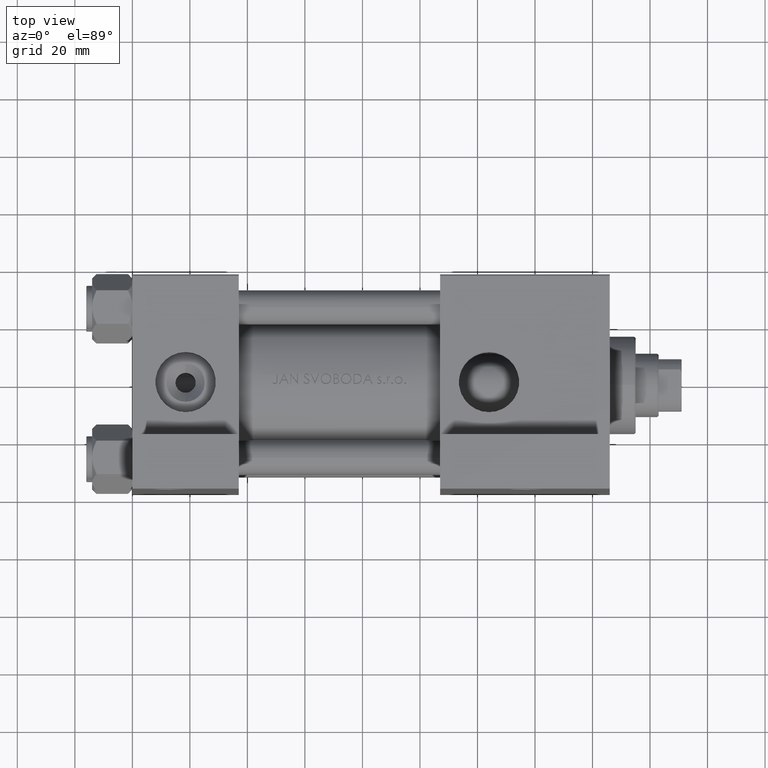
[diagram: clean part render]
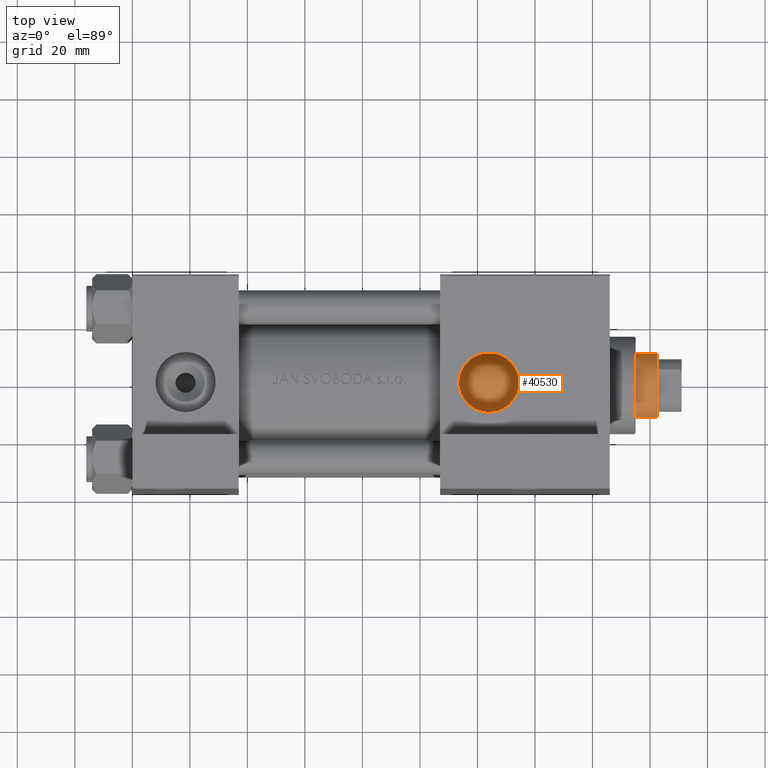
[diagram: same view with one face highlighted and labeled with its STEP entity id]
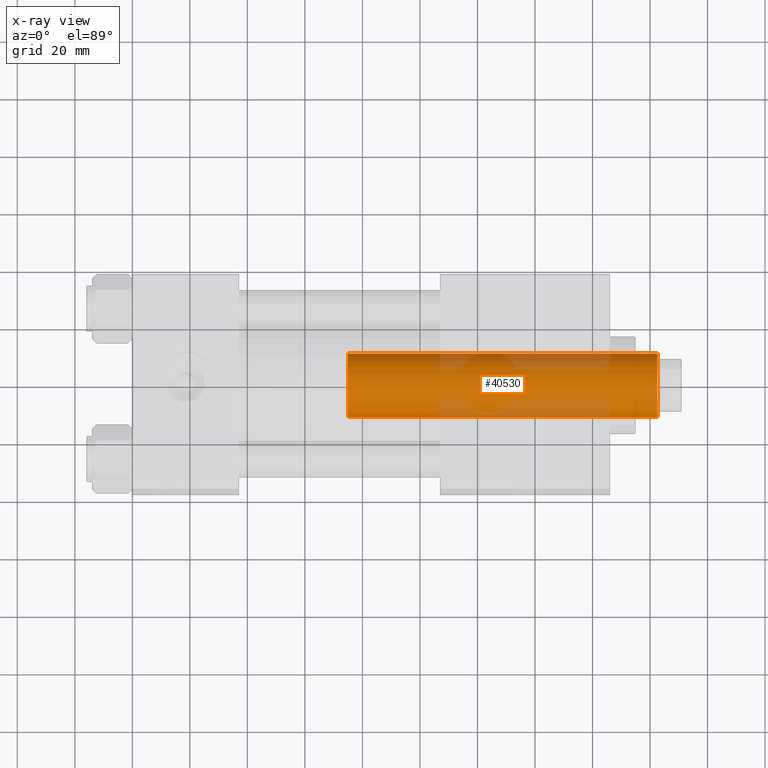
[diagram: x-ray of the same camera — body ghosted, the highlighted face saturated]
A machine part, top view. The second image highlights one B-rep face of the part: STEP entity #40530.
The next image is the same camera in x-ray: the body ghosted, the highlighted face saturated — about 24% of this face is hidden behind the body in this view.
In plain terms, the highlighted cylindrical surface (edge-blend (fillet) strip) has radius 11 mm, axis along (-1, 0, 0).
Its self-contained STEP definition (entity closure, byte-faithful):
#481 = VECTOR ( 'NONE', #22586, 1000.000000000000000 ) ;
#816 = ORIENTED_EDGE ( 'NONE', *, *, #8033, .T. ) ;
#1291 = LINE ( 'NONE', #8521, #4215 ) ;
#3079 = DIRECTION ( 'NONE',  ( -0.000000000000000000, -0.000000000000000000, -1.000000000000000000 ) ) ;
#3672 = LINE ( 'NONE', #27065, #481 ) ;
#4215 = VECTOR ( 'NONE', #43362, 1000.000000000000000 ) ;
#4534 = CARTESIAN_POINT ( 'NONE',  ( -11.00000000000000000, 0.000000000000000000, 145.4999999999999716 ) ) ;
#5597 = CARTESIAN_POINT ( 'NONE',  ( 0.000000000000000000, 0.000000000000000000, 145.4999999999999716 ) ) ;
#6826 = CARTESIAN_POINT ( 'NONE',  ( 0.000000000000000000, 0.000000000000000000, 146.0000000000000000 ) ) ;
#8033 = EDGE_CURVE ( 'NONE', #12761, #32693, #1291, .T. ) ;
#8521 = CARTESIAN_POINT ( 'NONE',  ( -11.00000000000000000, 0.000000000000000000, 146.0000000000000000 ) ) ;
#9903 = CARTESIAN_POINT ( 'NONE',  ( 0.000000000000000000, 0.000000000000000000, 38.00000000000000000 ) ) ;
#10563 = DIRECTION ( 'NONE',  ( -1.000000000000000000, 0.000000000000000000, 0.000000000000000000 ) ) ;
#11689 = ORIENTED_EDGE ( 'NONE', *, *, #45619, .T. ) ;
#12761 = VERTEX_POINT ( 'NONE', #4534 ) ;
#15577 = VERTEX_POINT ( 'NONE', #16428 ) ;
#16428 = CARTESIAN_POINT ( 'NONE',  ( 11.00000000000000000, 1.347111479062088405E-15, 145.4999999999999716 ) ) ;
#17915 = CIRCLE ( 'NONE', #19522, 11.00000000000000000 ) ;
#18541 = ORIENTED_EDGE ( 'NONE', *, *, #19213, .F. ) ;
#19213 = EDGE_CURVE ( 'NONE', #15577, #32727, #3672, .T. ) ;
#19522 = AXIS2_PLACEMENT_3D ( 'NONE', #9903, #25082, #37040 ) ;
#19580 = EDGE_CURVE ( 'NONE', #15577, #12761, #33123, .T. ) ;
#21085 = CARTESIAN_POINT ( 'NONE',  ( 11.00000000000000000, 1.347111479062088405E-15, 38.00000000000000000 ) ) ;
#22586 = DIRECTION ( 'NONE',  ( -0.000000000000000000, -0.000000000000000000, -1.000000000000000000 ) ) ;
#25082 = DIRECTION ( 'NONE',  ( 0.000000000000000000, 0.000000000000000000, 1.000000000000000000 ) ) ;
#25504 = FACE_OUTER_BOUND ( 'NONE', #36903, .T. ) ;
#27065 = CARTESIAN_POINT ( 'NONE',  ( 11.00000000000000000, 1.347111479062088405E-15, 146.0000000000000000 ) ) ;
#29672 = AXIS2_PLACEMENT_3D ( 'NONE', #6826, #3079, #10563 ) ;
#31989 = DIRECTION ( 'NONE',  ( 0.000000000000000000, 0.000000000000000000, -1.000000000000000000 ) ) ;
#32693 = VERTEX_POINT ( 'NONE', #42525 ) ;
#32727 = VERTEX_POINT ( 'NONE', #21085 ) ;
#33123 = CIRCLE ( 'NONE', #46672, 11.00000000000000000 ) ;
#36903 = EDGE_LOOP ( 'NONE', ( #18541, #39911, #816, #11689 ) ) ;
#37040 = DIRECTION ( 'NONE',  ( 1.000000000000000000, 0.000000000000000000, 0.000000000000000000 ) ) ;
#39911 = ORIENTED_EDGE ( 'NONE', *, *, #19580, .T. ) ;
#40530 = ADVANCED_FACE ( 'NONE', ( #25504 ), #44662, .T. ) ;
#42525 = CARTESIAN_POINT ( 'NONE',  ( -11.00000000000000000, 0.000000000000000000, 38.00000000000000000 ) ) ;
#42955 = DIRECTION ( 'NONE',  ( 1.000000000000000000, 0.000000000000000000, 0.000000000000000000 ) ) ;
#43362 = DIRECTION ( 'NONE',  ( -0.000000000000000000, -0.000000000000000000, -1.000000000000000000 ) ) ;
#44662 = CYLINDRICAL_SURFACE ( 'NONE', #29672, 11.00000000000000000 ) ;
#45619 = EDGE_CURVE ( 'NONE', #32693, #32727, #17915, .T. ) ;
#46672 = AXIS2_PLACEMENT_3D ( 'NONE', #5597, #31989, #42955 ) ;